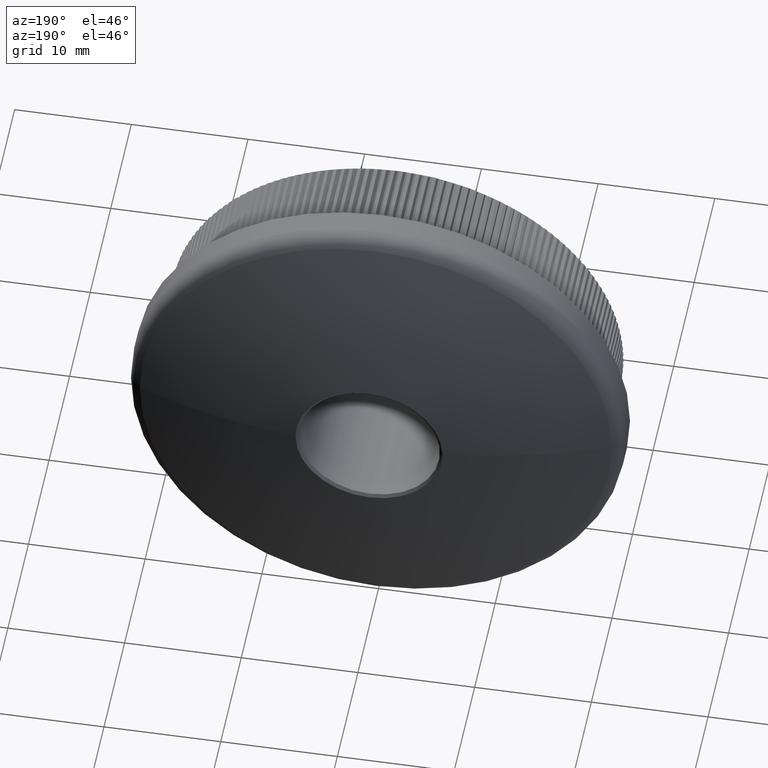
[diagram: clean part render]
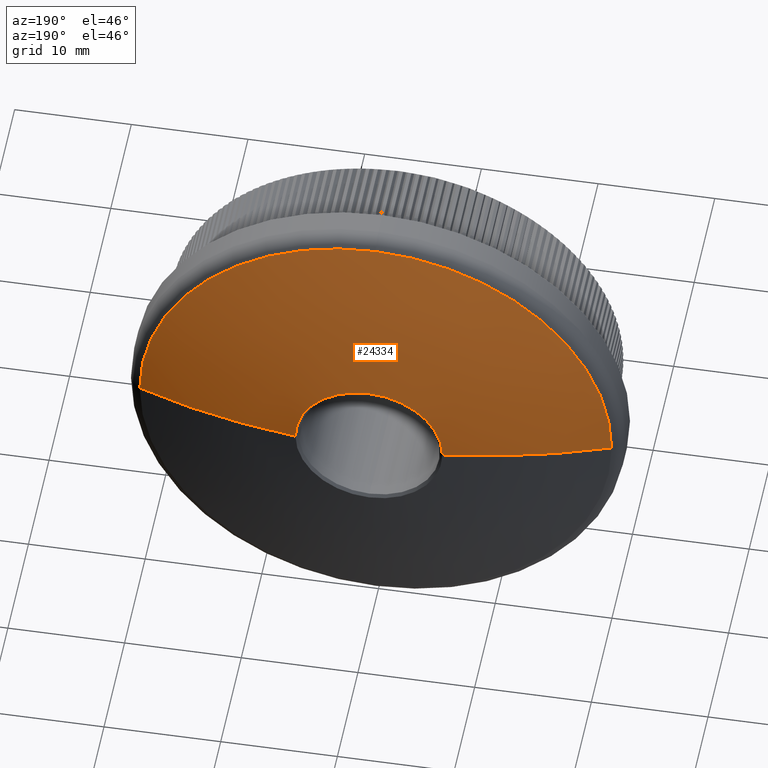
[diagram: same view with one face highlighted and labeled with its STEP entity id]
A machine part, auxiliary view. The second image highlights one B-rep face of the part: STEP entity #24334.
In plain terms, the highlighted spherical surface has radius 58.18 mm.
Its self-contained STEP definition (entity closure, byte-faithful):
#1349 = ORIENTED_EDGE ( 'NONE', *, *, #7700, .T. ) ;
#1520 = EDGE_CURVE ( 'NONE', #7544, #15467, #19964, .T. ) ;
#1622 = DIRECTION ( 'NONE',  ( 1.224646799147353200E-016, -0.0000000000000000000, 1.000000000000000000 ) ) ;
#1948 = VERTEX_POINT ( 'NONE', #24326 ) ;
#4003 = DIRECTION ( 'NONE',  ( 0.0000000000000000000, 1.000000000000000000, 0.0000000000000000000 ) ) ;
#4704 = ORIENTED_EDGE ( 'NONE', *, *, #19571, .T. ) ;
#6109 = AXIS2_PLACEMENT_3D ( 'NONE', #17385, #9657, #19896 ) ;
#6280 = CARTESIAN_POINT ( 'NONE',  ( -20.22134791813689200, 11.37281375303809700, 2.476400900239134100E-015 ) ) ;
#6473 = CARTESIAN_POINT ( 'NONE',  ( -6.298057098432273000, 14.65810920824510400, 1.623845223441685600E-015 ) ) ;
#6589 = DIRECTION ( 'NONE',  ( 0.0000000000000000000, 0.0000000000000000000, -1.000000000000000000 ) ) ;
#7474 = ORIENTED_EDGE ( 'NONE', *, *, #19469, .T. ) ;
#7544 = VERTEX_POINT ( 'NONE', #13001 ) ;
#7643 = DIRECTION ( 'NONE',  ( 1.000000000000000000, 0.0000000000000000000, 0.0000000000000000000 ) ) ;
#7700 = EDGE_CURVE ( 'NONE', #12483, #7544, #23152, .T. ) ;
#7732 = VERTEX_POINT ( 'NONE', #6473 ) ;
#7991 = DIRECTION ( 'NONE',  ( 0.0000000000000000000, 0.0000000000000000000, -1.000000000000000000 ) ) ;
#8980 = DIRECTION ( 'NONE',  ( -1.000000000000000000, 0.0000000000000000000, 0.0000000000000000000 ) ) ;
#9448 = AXIS2_PLACEMENT_3D ( 'NONE', #13728, #11118, #26007 ) ;
#9657 = DIRECTION ( 'NONE',  ( -0.0000000000000000000, -1.000000000000000000, -0.0000000000000000000 ) ) ;
#10187 = AXIS2_PLACEMENT_3D ( 'NONE', #30846, #13152, #7991 ) ;
#10326 = AXIS2_PLACEMENT_3D ( 'NONE', #28571, #28976, #8980 ) ;
#10488 = CIRCLE ( 'NONE', #6109, 6.298057098432273000 ) ;
#11118 = DIRECTION ( 'NONE',  ( 0.0000000000000000000, 1.000000000000000000, 0.0000000000000000000 ) ) ;
#11483 = SPHERICAL_SURFACE ( 'NONE', #32323, 58.18000000000007100 ) ;
#11546 = CARTESIAN_POINT ( 'NONE',  ( 0.0000000000000000000, 11.37281375303810000, 0.0000000000000000000 ) ) ;
#11904 = CARTESIAN_POINT ( 'NONE',  ( 0.0000000000000000000, -43.18000000000007100, 0.0000000000000000000 ) ) ;
#12483 = VERTEX_POINT ( 'NONE', #6280 ) ;
#13001 = CARTESIAN_POINT ( 'NONE',  ( 2.536326057215763400E-015, 11.37281375303810000, 20.22134791813691000 ) ) ;
#13152 = DIRECTION ( 'NONE',  ( -0.0000000000000000000, -1.000000000000000000, -0.0000000000000000000 ) ) ;
#13414 = VERTEX_POINT ( 'NONE', #23483 ) ;
#13728 = CARTESIAN_POINT ( 'NONE',  ( 0.0000000000000000000, 11.37281375303810000, 0.0000000000000000000 ) ) ;
#14423 = CIRCLE ( 'NONE', #10187, 6.298057098432273000 ) ;
#15467 = VERTEX_POINT ( 'NONE', #26184 ) ;
#15469 = EDGE_CURVE ( 'NONE', #13414, #15467, #21337, .T. ) ;
#17154 = CIRCLE ( 'NONE', #23713, 58.18000000000007100 ) ;
#17263 = CARTESIAN_POINT ( 'NONE',  ( 0.0000000000000000000, -43.18000000000007100, 0.0000000000000000000 ) ) ;
#17385 = CARTESIAN_POINT ( 'NONE',  ( 0.0000000000000000000, 14.65810920824510400, 0.0000000000000000000 ) ) ;
#18941 = AXIS2_PLACEMENT_3D ( 'NONE', #11546, #4003, #6589 ) ;
#19469 = EDGE_CURVE ( 'NONE', #7732, #12483, #17154, .T. ) ;
#19571 = EDGE_CURVE ( 'NONE', #13414, #1948, #14423, .T. ) ;
#19896 = DIRECTION ( 'NONE',  ( 0.0000000000000000000, 0.0000000000000000000, -1.000000000000000000 ) ) ;
#19964 = CIRCLE ( 'NONE', #9448, 20.22134791813691000 ) ;
#21337 = CIRCLE ( 'NONE', #10326, 58.18000000000007100 ) ;
#23152 = CIRCLE ( 'NONE', #18941, 20.22134791813691000 ) ;
#23483 = CARTESIAN_POINT ( 'NONE',  ( 6.298057098432273000, 14.65810920824510400, 0.0000000000000000000 ) ) ;
#23713 = AXIS2_PLACEMENT_3D ( 'NONE', #11904, #1622, #24201 ) ;
#24201 = DIRECTION ( 'NONE',  ( 1.000000000000000000, 0.0000000000000000000, -1.224646799147353500E-016 ) ) ;
#24326 = CARTESIAN_POINT ( 'NONE',  ( 0.0000000000000000000, 14.65810920824510400, 6.298057098432272100 ) ) ;
#24334 = ADVANCED_FACE ( 'NONE', ( #30946 ), #11483, .T. ) ;
#25426 = ORIENTED_EDGE ( 'NONE', *, *, #30480, .T. ) ;
#26007 = DIRECTION ( 'NONE',  ( 0.0000000000000000000, 0.0000000000000000000, -1.000000000000000000 ) ) ;
#26184 = CARTESIAN_POINT ( 'NONE',  ( 20.22134791813689200, 11.37281375303809700, 0.0000000000000000000 ) ) ;
#27585 = DIRECTION ( 'NONE',  ( 0.0000000000000000000, 0.0000000000000000000, 1.000000000000000000 ) ) ;
#27767 = ORIENTED_EDGE ( 'NONE', *, *, #15469, .F. ) ;
#28571 = CARTESIAN_POINT ( 'NONE',  ( 0.0000000000000000000, -43.18000000000007100, 0.0000000000000000000 ) ) ;
#28976 = DIRECTION ( 'NONE',  ( 0.0000000000000000000, 0.0000000000000000000, -1.000000000000000000 ) ) ;
#28991 = ORIENTED_EDGE ( 'NONE', *, *, #1520, .T. ) ;
#30190 = EDGE_LOOP ( 'NONE', ( #4704, #25426, #7474, #1349, #28991, #27767 ) ) ;
#30480 = EDGE_CURVE ( 'NONE', #1948, #7732, #10488, .T. ) ;
#30846 = CARTESIAN_POINT ( 'NONE',  ( 0.0000000000000000000, 14.65810920824510400, 0.0000000000000000000 ) ) ;
#30946 = FACE_OUTER_BOUND ( 'NONE', #30190, .T. ) ;
#32323 = AXIS2_PLACEMENT_3D ( 'NONE', #17263, #27585, #7643 ) ;